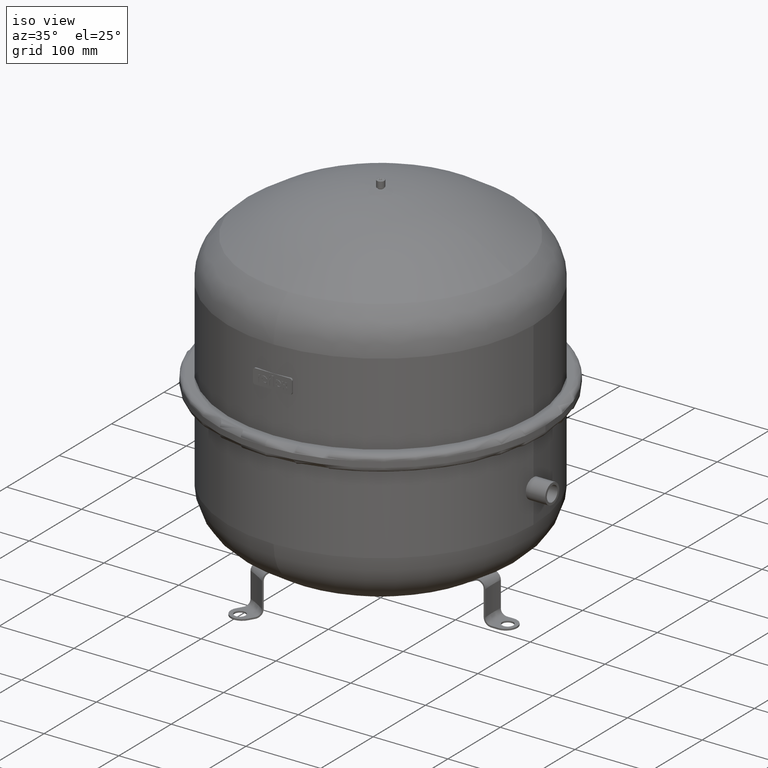
[diagram: clean part render]
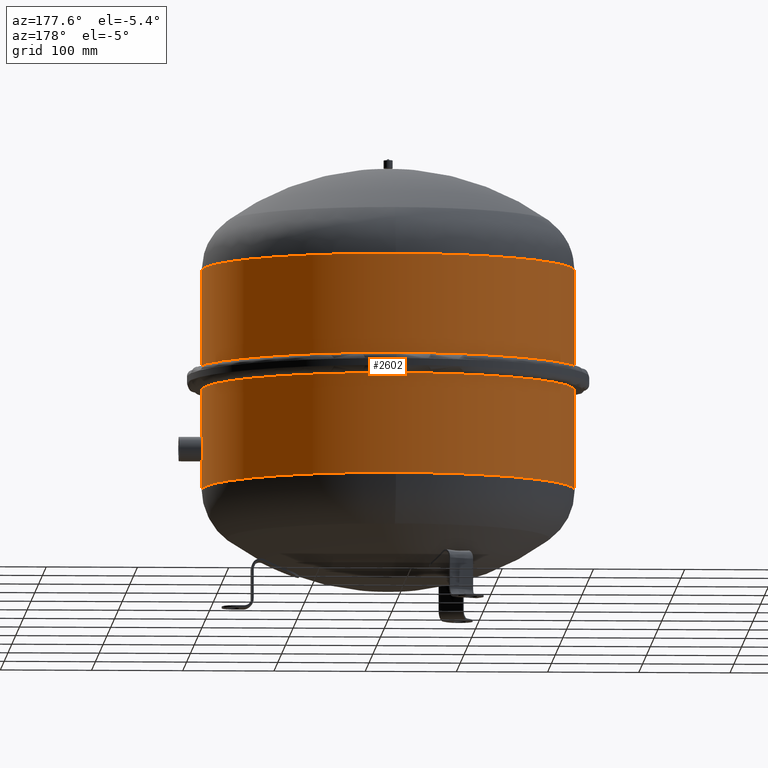
[diagram: tour spotlight — one face highlighted and labeled with its STEP entity id]
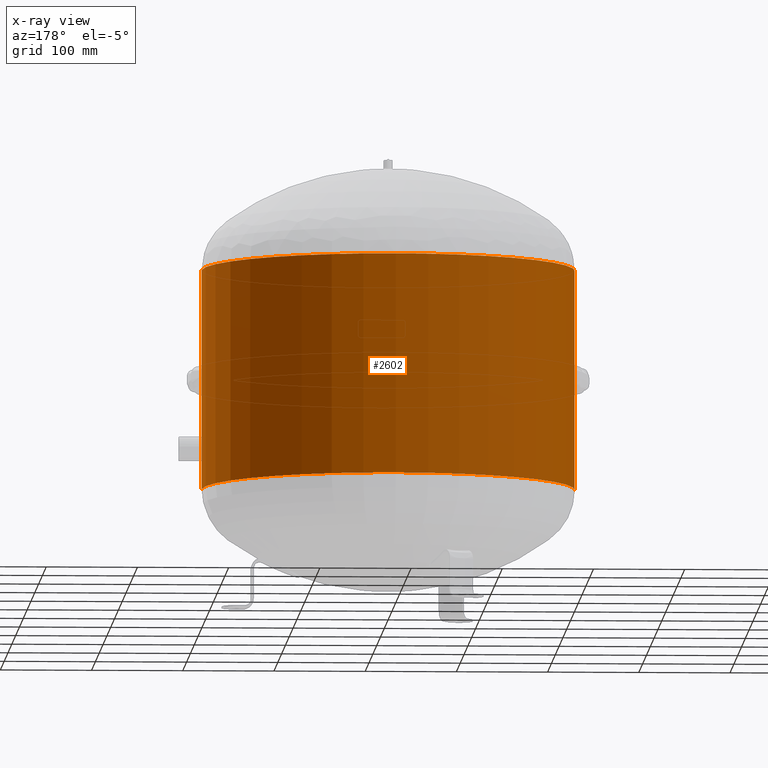
[diagram: x-ray of the same camera — body ghosted, this tour face saturated]
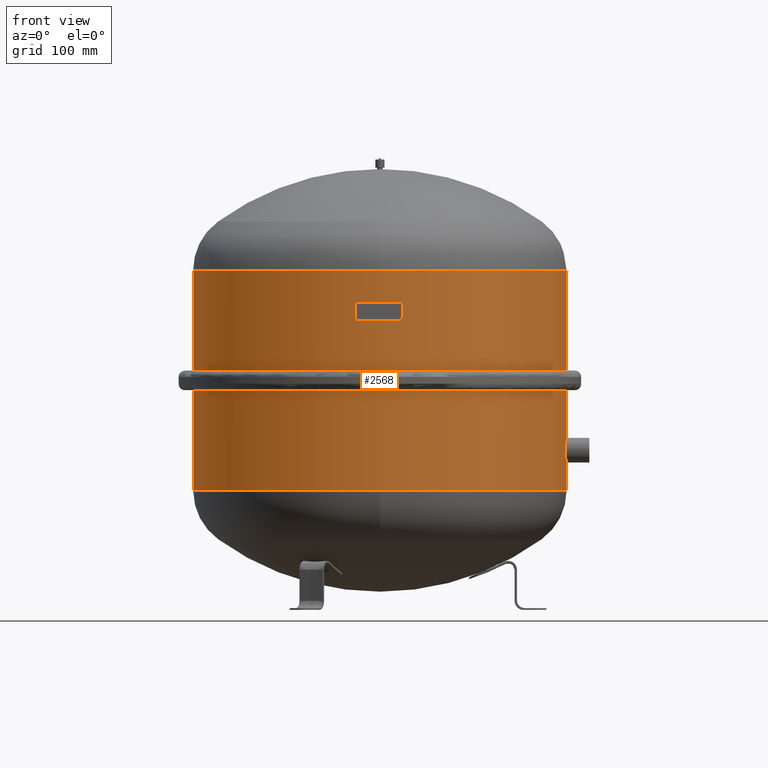
[diagram: tour spotlight — one face highlighted and labeled with its STEP entity id]
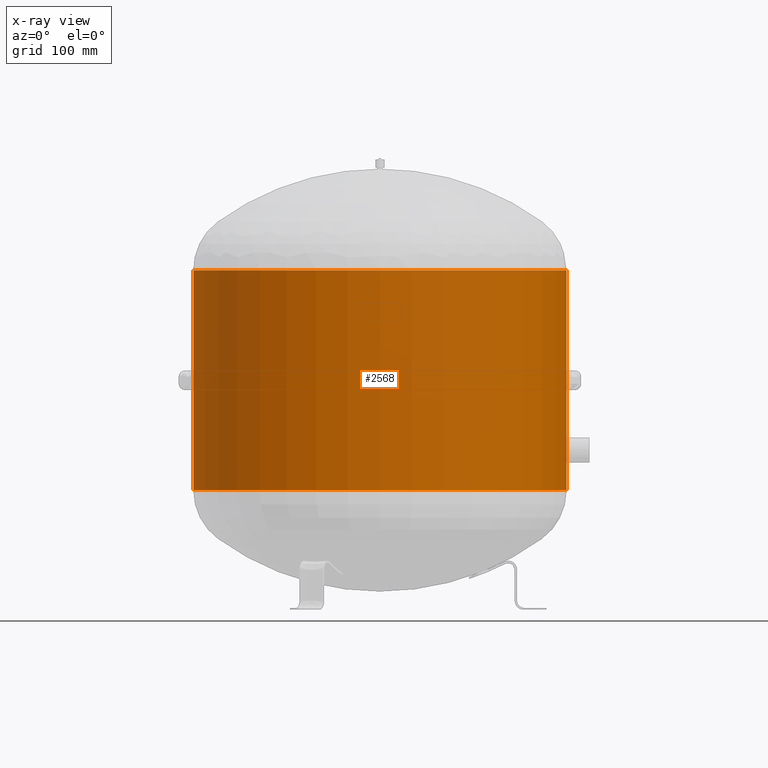
[diagram: x-ray of the same camera — body ghosted, this tour face saturated]
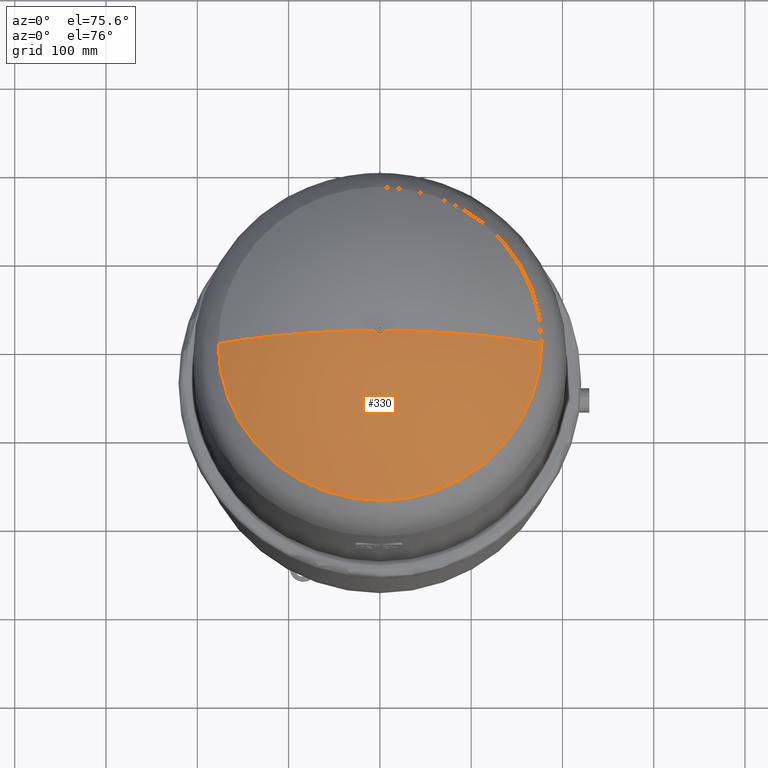
[diagram: tour spotlight — one face highlighted and labeled with its STEP entity id]
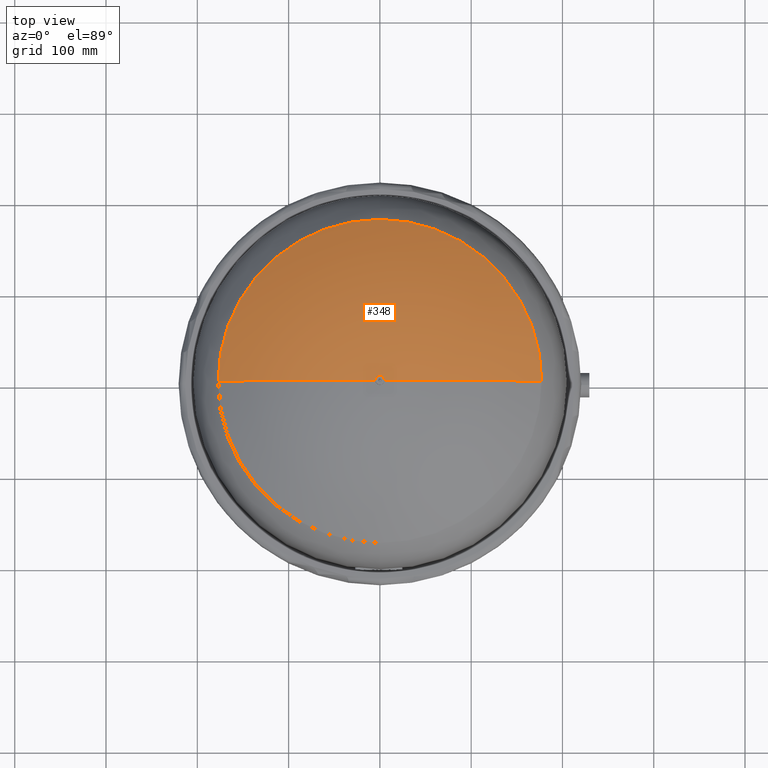
[diagram: tour spotlight — one face highlighted and labeled with its STEP entity id]
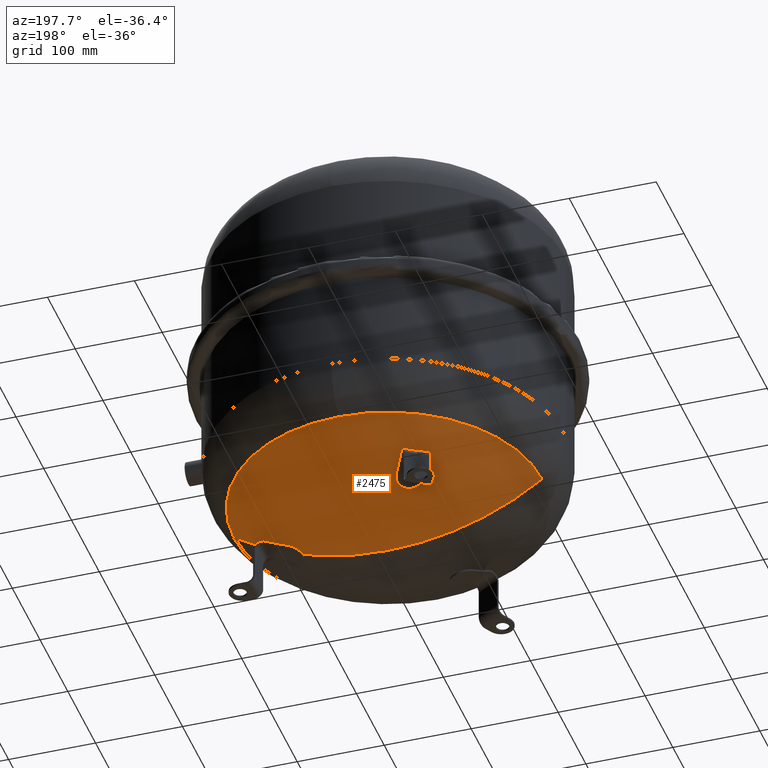
[diagram: tour spotlight — one face highlighted and labeled with its STEP entity id]
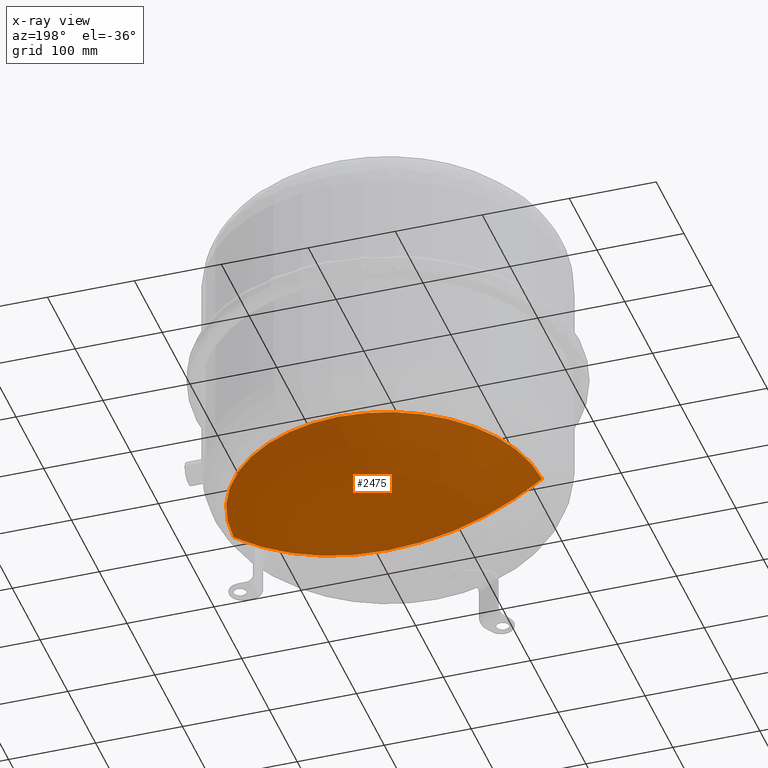
[diagram: x-ray of the same camera — body ghosted, this tour face saturated]
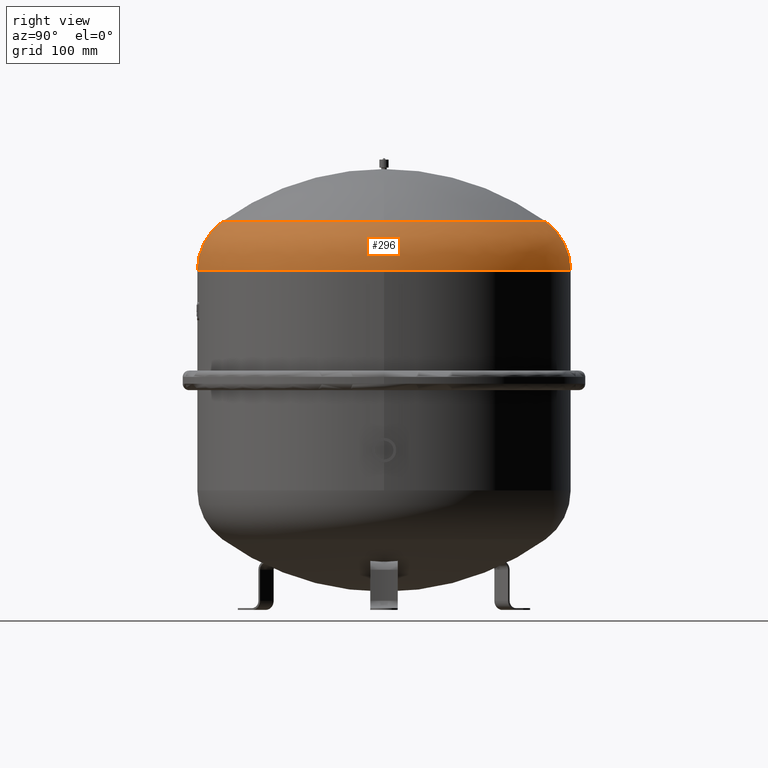
[diagram: tour spotlight — one face highlighted and labeled with its STEP entity id]
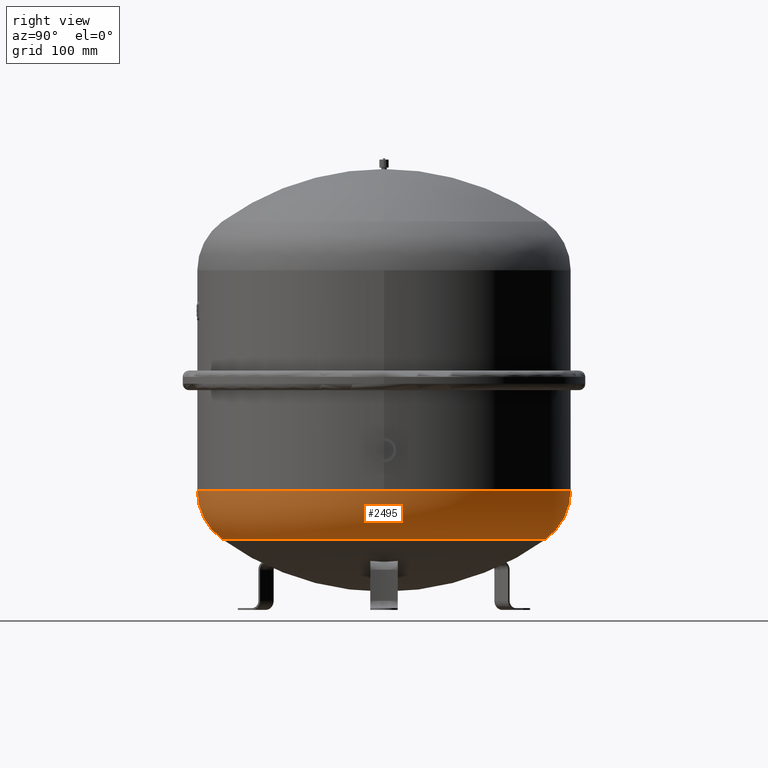
[diagram: tour spotlight — one face highlighted and labeled with its STEP entity id]
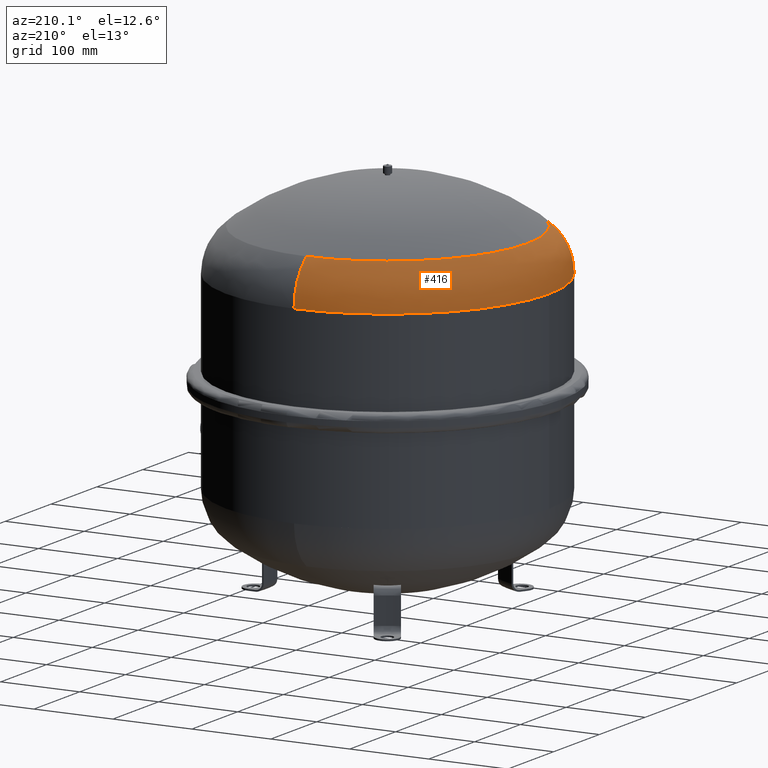
[diagram: tour spotlight — one face highlighted and labeled with its STEP entity id]
A machine part: a face-by-face anatomy tour. The part has 191 B-rep faces; the first image is the clean iso view, then the 8 largest visible faces are spotlighted one at a time (largest first), each with its STEP entity span.

Face 1 — auxiliary view, entity #2602. An x-ray twin of the same camera follows (body ghosted, this face saturated) — the face is partly hidden behind the body. In plain terms, the highlighted cylindrical surface (partial cylindrical patch) has radius 204.5 mm, axis along (0, 0, 1).
Definition (entity closure, byte-faithful):
#2532=CARTESIAN_POINT('',(204.5,0.0,372.0));
#2533=VERTEX_POINT('',#2532);
#2534=CARTESIAN_POINT('',(204.5,0.0,131.0));
#2535=VERTEX_POINT('',#2534);
#2536=CARTESIAN_POINT('',(204.5,0.0,372.0));
#2537=DIRECTION('',(0.0,0.0,-1.0));
#2538=VECTOR('',#2537,241.0);
#2539=LINE('',#2536,#2538);
#2540=EDGE_CURVE('',#2533,#2535,#2539,.T.);
#2542=CARTESIAN_POINT('',(-204.5,-2.504320E-014,372.0));
#2543=VERTEX_POINT('',#2542);
#2551=CARTESIAN_POINT('',(-204.5,2.504320E-014,131.0));
#2552=VERTEX_POINT('',#2551);
#2553=CARTESIAN_POINT('',(-204.5,-2.504320E-014,372.0));
#2554=DIRECTION('',(0.0,0.0,-1.0));
#2555=VECTOR('',#2554,241.0);
#2556=LINE('',#2553,#2555);
#2557=EDGE_CURVE('',#2543,#2552,#2556,.T.);
#2574=CARTESIAN_POINT('',(0.0,0.0,131.0));
#2575=DIRECTION('',(0.0,0.0,-1.0));
#2576=DIRECTION('',(1.0,0.0,0.0));
#2577=AXIS2_PLACEMENT_3D('',#2574,#2575,#2576);
#2578=CIRCLE('',#2577,204.5);
#2579=EDGE_CURVE('',#2552,#2535,#2578,.T.);
#2585=CARTESIAN_POINT('',(0.0,0.0,251.5));
#2586=DIRECTION('',(0.0,0.0,1.0));
#2587=DIRECTION('',(1.0,0.0,0.0));
#2588=AXIS2_PLACEMENT_3D('',#2585,#2586,#2587);
#2589=CYLINDRICAL_SURFACE('',#2588,204.5);
#2590=ORIENTED_EDGE('',*,*,#2540,.T.);
#2591=ORIENTED_EDGE('',*,*,#2579,.F.);
#2592=ORIENTED_EDGE('',*,*,#2557,.F.);
#2593=CARTESIAN_POINT('',(0.0,0.0,372.0));
#2594=DIRECTION('',(0.0,0.0,1.0));
#2595=DIRECTION('',(1.0,0.0,0.0));
#2596=AXIS2_PLACEMENT_3D('',#2593,#2594,#2595);
#2597=CIRCLE('',#2596,204.5);
#2598=EDGE_CURVE('',#2533,#2543,#2597,.T.);
#2599=ORIENTED_EDGE('',*,*,#2598,.F.);
#2600=EDGE_LOOP('',(#2590,#2591,#2592,#2599));
#2601=FACE_OUTER_BOUND('',#2600,.T.);
#2602=ADVANCED_FACE('',(#2601),#2589,.T.);

Face 2 — front view, entity #2568. An x-ray twin of the same camera follows (body ghosted, this face saturated) — the face is partly hidden behind the body. In plain terms, the highlighted cylindrical surface (partial cylindrical patch) has radius 204.5 mm, axis along (0, 0, 1).
Definition (entity closure, byte-faithful):
#2527=CARTESIAN_POINT('',(0.0,0.0,251.5));
#2528=DIRECTION('',(0.0,0.0,1.0));
#2529=DIRECTION('',(1.0,0.0,0.0));
#2530=AXIS2_PLACEMENT_3D('',#2527,#2528,#2529);
#2531=CYLINDRICAL_SURFACE('',#2530,204.5);
#2532=CARTESIAN_POINT('',(204.5,0.0,372.0));
#2533=VERTEX_POINT('',#2532);
#2534=CARTESIAN_POINT('',(204.5,0.0,131.0));
#2535=VERTEX_POINT('',#2534);
#2536=CARTESIAN_POINT('',(204.5,0.0,372.0));
#2537=DIRECTION('',(0.0,0.0,-1.0));
#2538=VECTOR('',#2537,241.0);
#2539=LINE('',#2536,#2538);
#2540=EDGE_CURVE('',#2533,#2535,#2539,.T.);
#2541=ORIENTED_EDGE('',*,*,#2540,.F.);
#2542=CARTESIAN_POINT('',(-204.5,-2.504320E-014,372.0));
#2543=VERTEX_POINT('',#2542);
#2544=CARTESIAN_POINT('',(0.0,0.0,372.0));
#2545=DIRECTION('',(0.0,0.0,1.0));
#2546=DIRECTION('',(1.0,0.0,0.0));
#2547=AXIS2_PLACEMENT_3D('',#2544,#2545,#2546);
#2548=CIRCLE('',#2547,204.5);
#2549=EDGE_CURVE('',#2543,#2533,#2548,.T.);
#2550=ORIENTED_EDGE('',*,*,#2549,.F.);
#2551=CARTESIAN_POINT('',(-204.5,2.504320E-014,131.0));
#2552=VERTEX_POINT('',#2551);
#2553=CARTESIAN_POINT('',(-204.5,-2.504320E-014,372.0));
#2554=DIRECTION('',(0.0,0.0,-1.0));
#2555=VECTOR('',#2554,241.0);
#2556=LINE('',#2553,#2555);
#2557=EDGE_CURVE('',#2543,#2552,#2556,.T.);
#2558=ORIENTED_EDGE('',*,*,#2557,.T.);
#2559=CARTESIAN_POINT('',(0.0,0.0,131.0));
#2560=DIRECTION('',(0.0,0.0,-1.0));
#2561=DIRECTION('',(1.0,0.0,0.0));
#2562=AXIS2_PLACEMENT_3D('',#2559,#2560,#2561);
#2563=CIRCLE('',#2562,204.5);
#2564=EDGE_CURVE('',#2535,#2552,#2563,.T.);
#2565=ORIENTED_EDGE('',*,*,#2564,.F.);
#2566=EDGE_LOOP('',(#2541,#2550,#2558,#2565));
#2567=FACE_OUTER_BOUND('',#2566,.T.);
#2568=ADVANCED_FACE('',(#2567),#2531,.T.);

Face 3 — auxiliary view, entity #330. In plain terms, the highlighted spherical surface has radius 302 mm.
Definition (entity closure, byte-faithful):
#250=CARTESIAN_POINT('',(0.0,-177.23305084745763,425.52493878396643));
#251=VERTEX_POINT('',#250);
#278=CARTESIAN_POINT('',(177.23305084745763,-5.547650E-014,425.52493878396638));
#279=VERTEX_POINT('',#278);
#287=CARTESIAN_POINT('',(0.0,-1.055800E-014,425.52493878396638));
#288=DIRECTION('',(0.0,0.0,1.0));
#289=DIRECTION('',(-1.0,0.0,0.0));
#290=AXIS2_PLACEMENT_3D('',#287,#288,#289);
#291=CIRCLE('',#290,177.23305084745763);
#292=EDGE_CURVE('',#251,#279,#291,.T.);
#297=CARTESIAN_POINT('',(0.0,-5.547650E-014,181.0));
#298=DIRECTION('',(0.0,0.0,1.0));
#299=DIRECTION('',(1.0,0.0,0.0));
#300=AXIS2_PLACEMENT_3D('',#297,#298,#299);
#301=SPHERICAL_SURFACE('',#300,302.00000000000006);
#302=CARTESIAN_POINT('',(-1.849156E-014,-5.547650E-014,483.00000000000006));
#303=VERTEX_POINT('',#302);
#304=CARTESIAN_POINT('',(0.0,-5.547650E-014,181.0));
#305=DIRECTION('',(0.0,1.0,0.0));
#306=DIRECTION('',(1.0,0.0,0.0));
#307=AXIS2_PLACEMENT_3D('',#304,#305,#306);
#308=CIRCLE('',#307,302.00000000000006);
#309=EDGE_CURVE('',#303,#279,#308,.T.);
#310=ORIENTED_EDGE('',*,*,#309,.F.);
#311=CARTESIAN_POINT('',(-177.23305084745763,-1.055800E-014,425.52493878396638));
#312=VERTEX_POINT('',#311);
#313=CARTESIAN_POINT('',(0.0,-5.547650E-014,181.0));
#314=DIRECTION('',(0.0,-1.0,0.0));
#315=DIRECTION('',(-1.0,0.0,0.0));
#316=AXIS2_PLACEMENT_3D('',#313,#314,#315);
#317=CIRCLE('',#316,302.00000000000006);
#318=EDGE_CURVE('',#303,#312,#317,.T.);
#319=ORIENTED_EDGE('',*,*,#318,.T.);
#320=CARTESIAN_POINT('',(0.0,-1.055800E-014,425.52493878396638));
#321=DIRECTION('',(0.0,0.0,1.0));
#322=DIRECTION('',(-1.0,0.0,0.0));
#323=AXIS2_PLACEMENT_3D('',#320,#321,#322);
#324=CIRCLE('',#323,177.23305084745763);
#325=EDGE_CURVE('',#312,#251,#324,.T.);
#326=ORIENTED_EDGE('',*,*,#325,.T.);
#327=ORIENTED_EDGE('',*,*,#292,.T.);
#328=EDGE_LOOP('',(#310,#319,#326,#327));
#329=FACE_OUTER_BOUND('',#328,.T.);
#330=ADVANCED_FACE('',(#329),#301,.T.);

Face 4 — top view, entity #348. In plain terms, the highlighted spherical surface has radius 302 mm.
Definition (entity closure, byte-faithful):
#269=CARTESIAN_POINT('',(-2.170407E-014,177.23305084745763,425.52493878396632));
#270=VERTEX_POINT('',#269);
#278=CARTESIAN_POINT('',(177.23305084745763,-5.547650E-014,425.52493878396638));
#279=VERTEX_POINT('',#278);
#280=CARTESIAN_POINT('',(0.0,-1.055800E-014,425.52493878396638));
#281=DIRECTION('',(0.0,0.0,1.0));
#282=DIRECTION('',(-1.0,0.0,0.0));
#283=AXIS2_PLACEMENT_3D('',#280,#281,#282);
#284=CIRCLE('',#283,177.23305084745763);
#285=EDGE_CURVE('',#279,#270,#284,.T.);
#302=CARTESIAN_POINT('',(-1.849156E-014,-5.547650E-014,483.00000000000006));
#303=VERTEX_POINT('',#302);
#304=CARTESIAN_POINT('',(0.0,-5.547650E-014,181.0));
#305=DIRECTION('',(0.0,1.0,0.0));
#306=DIRECTION('',(1.0,0.0,0.0));
#307=AXIS2_PLACEMENT_3D('',#304,#305,#306);
#308=CIRCLE('',#307,302.00000000000006);
#309=EDGE_CURVE('',#303,#279,#308,.T.);
#311=CARTESIAN_POINT('',(-177.23305084745763,-1.055800E-014,425.52493878396638));
#312=VERTEX_POINT('',#311);
#313=CARTESIAN_POINT('',(0.0,-5.547650E-014,181.0));
#314=DIRECTION('',(0.0,-1.0,0.0));
#315=DIRECTION('',(-1.0,0.0,0.0));
#316=AXIS2_PLACEMENT_3D('',#313,#314,#315);
#317=CIRCLE('',#316,302.00000000000006);
#318=EDGE_CURVE('',#303,#312,#317,.T.);
#331=CARTESIAN_POINT('',(0.0,-5.547650E-014,181.0));
#332=DIRECTION('',(0.0,0.0,1.0));
#333=DIRECTION('',(1.0,0.0,0.0));
#334=AXIS2_PLACEMENT_3D('',#331,#332,#333);
#335=SPHERICAL_SURFACE('',#334,302.00000000000006);
#336=ORIENTED_EDGE('',*,*,#309,.T.);
#337=ORIENTED_EDGE('',*,*,#285,.T.);
#338=CARTESIAN_POINT('',(0.0,-1.055800E-014,425.52493878396638));
#339=DIRECTION('',(0.0,0.0,1.0));
#340=DIRECTION('',(-1.0,0.0,0.0));
#341=AXIS2_PLACEMENT_3D('',#338,#339,#340);
#342=CIRCLE('',#341,177.23305084745763);
#343=EDGE_CURVE('',#270,#312,#342,.T.);
#344=ORIENTED_EDGE('',*,*,#343,.T.);
#345=ORIENTED_EDGE('',*,*,#318,.F.);
#346=EDGE_LOOP('',(#336,#337,#344,#345));
#347=FACE_OUTER_BOUND('',#346,.T.);
#348=ADVANCED_FACE('',(#347),#335,.T.);

Face 5 — auxiliary view, entity #2475. An x-ray twin of the same camera follows (body ghosted, this face saturated) — the face is partly hidden behind the body. In plain terms, the highlighted spherical surface has radius 302 mm.
Definition (entity closure, byte-faithful):
#2396=CARTESIAN_POINT('',(-2.170407E-014,177.23305084745763,77.475061216033623));
#2397=VERTEX_POINT('',#2396);
#2405=CARTESIAN_POINT('',(-177.23305084745763,-1.055800E-014,77.475061216033595));
#2406=VERTEX_POINT('',#2405);
#2407=CARTESIAN_POINT('',(0.0,-1.055800E-014,77.475061216033595));
#2408=DIRECTION('',(0.0,0.0,1.0));
#2409=DIRECTION('',(-1.0,0.0,0.0));
#2410=AXIS2_PLACEMENT_3D('',#2407,#2408,#2409);
#2411=CIRCLE('',#2410,177.23305084745763);
#2412=EDGE_CURVE('',#2397,#2406,#2411,.T.);
#2429=CARTESIAN_POINT('',(177.23305084745763,-5.547650E-014,77.475061216033609));
#2430=VERTEX_POINT('',#2429);
#2431=CARTESIAN_POINT('',(-1.849156E-014,-5.547650E-014,19.999999999999943));
#2432=VERTEX_POINT('',#2431);
#2433=CARTESIAN_POINT('',(0.0,-5.547650E-014,322.0));
#2434=DIRECTION('',(0.0,1.0,0.0));
#2435=DIRECTION('',(1.0,0.0,0.0));
#2436=AXIS2_PLACEMENT_3D('',#2433,#2434,#2435);
#2437=CIRCLE('',#2436,302.00000000000006);
#2438=EDGE_CURVE('',#2430,#2432,#2437,.T.);
#2448=CARTESIAN_POINT('',(0.0,-5.547650E-014,322.0));
#2449=DIRECTION('',(0.0,-1.0,0.0));
#2450=DIRECTION('',(-1.0,0.0,0.0));
#2451=AXIS2_PLACEMENT_3D('',#2448,#2449,#2450);
#2452=CIRCLE('',#2451,302.00000000000006);
#2453=EDGE_CURVE('',#2406,#2432,#2452,.T.);
#2458=CARTESIAN_POINT('',(0.0,-5.547650E-014,322.0));
#2459=DIRECTION('',(0.0,0.0,1.0));
#2460=DIRECTION('',(1.0,0.0,0.0));
#2461=AXIS2_PLACEMENT_3D('',#2458,#2459,#2460);
#2462=SPHERICAL_SURFACE('',#2461,302.00000000000006);
#2463=ORIENTED_EDGE('',*,*,#2438,.T.);
#2464=ORIENTED_EDGE('',*,*,#2453,.F.);
#2465=ORIENTED_EDGE('',*,*,#2412,.F.);
#2466=CARTESIAN_POINT('',(0.0,-1.055800E-014,77.475061216033595));
#2467=DIRECTION('',(0.0,0.0,1.0));
#2468=DIRECTION('',(-1.0,0.0,0.0));
#2469=AXIS2_PLACEMENT_3D('',#2466,#2467,#2468);
#2470=CIRCLE('',#2469,177.23305084745763);
#2471=EDGE_CURVE('',#2430,#2397,#2470,.T.);
#2472=ORIENTED_EDGE('',*,*,#2471,.F.);
#2473=EDGE_LOOP('',(#2463,#2464,#2465,#2472));
#2474=FACE_OUTER_BOUND('',#2473,.T.);
#2475=ADVANCED_FACE('',(#2474),#2462,.T.);

Face 6 — right view, entity #296. In plain terms, the highlighted face is a freeform B-spline surface patch.
Definition (entity closure, byte-faithful):
#170=CARTESIAN_POINT('',(204.50000000000003,4.668576E-015,372.08571375170879));
#171=VERTEX_POINT('',#170);
#178=CARTESIAN_POINT('',(0.0,-204.50000000000006,372.08571375170885));
#179=VERTEX_POINT('',#178);
#180=CARTESIAN_POINT('',(0.0,-2.037462E-014,372.08571375170879));
#181=DIRECTION('',(0.0,0.0,1.0));
#182=DIRECTION('',(-1.0,0.0,0.0));
#183=AXIS2_PLACEMENT_3D('',#180,#181,#182);
#184=CIRCLE('',#183,204.50000000000003);
#185=EDGE_CURVE('',#179,#171,#184,.T.);
#197=CARTESIAN_POINT('',(-8.878396E-015,72.499999999999972,372.08571375170868));
#198=CARTESIAN_POINT('',(-8.878396E-015,72.499999999999886,438.08571375170874));
#199=CARTESIAN_POINT('',(-1.696080E-014,138.49999999999997,438.08571375170874));
#200=CARTESIAN_POINT('',(-2.504320E-014,204.50000000000006,438.08571375170874));
#201=CARTESIAN_POINT('',(-2.504320E-014,204.49999999999997,372.08571375170862));
#202=CARTESIAN_POINT('',(-72.499999999999986,72.499999999999943,372.08571375170874));
#203=CARTESIAN_POINT('',(-72.499999999999901,72.499999999999872,438.08571375170874));
#204=CARTESIAN_POINT('',(-138.49999999999997,138.49999999999991,438.08571375170874));
#205=CARTESIAN_POINT('',(-204.50000000000003,204.49999999999997,438.08571375170874));
#206=CARTESIAN_POINT('',(-204.5,204.49999999999986,372.08571375170862));
#207=CARTESIAN_POINT('',(-72.499999999999986,-2.925302E-014,372.08571375170868));
#208=CARTESIAN_POINT('',(-72.499999999999901,-1.712902E-014,438.08571375170874));
#209=CARTESIAN_POINT('',(-138.49999999999997,-2.521142E-014,438.08571375170879));
#210=CARTESIAN_POINT('',(-204.50000000000006,-3.329382E-014,438.08571375170879));
#211=CARTESIAN_POINT('',(-204.5,-4.541782E-014,372.08571375170868));
#212=CARTESIAN_POINT('',(-72.499999999999957,-72.5,372.08571375170874));
#213=CARTESIAN_POINT('',(-72.499999999999872,-72.499999999999901,438.08571375170874));
#214=CARTESIAN_POINT('',(-138.49999999999991,-138.49999999999997,438.08571375170885));
#215=CARTESIAN_POINT('',(-204.49999999999997,-204.50000000000003,438.08571375170885));
#216=CARTESIAN_POINT('',(-204.49999999999991,-204.5,372.08571375170874));
#217=CARTESIAN_POINT('',(8.878396E-015,-72.5,372.08571375170868));
#218=CARTESIAN_POINT('',(8.878396E-015,-72.499999999999915,438.08571375170874));
#219=CARTESIAN_POINT('',(1.696080E-014,-138.49999999999997,438.08571375170885));
#220=CARTESIAN_POINT('',(2.504320E-014,-204.50000000000006,438.08571375170879));
#221=CARTESIAN_POINT('',(2.504320E-014,-204.50000000000003,372.08571375170874));
#222=CARTESIAN_POINT('',(72.499999999999986,-72.499999999999986,372.08571375170874));
#223=CARTESIAN_POINT('',(72.499999999999901,-72.499999999999886,438.08571375170874));
#224=CARTESIAN_POINT('',(138.49999999999997,-138.49999999999994,438.08571375170885));
#225=CARTESIAN_POINT('',(204.50000000000003,-204.49999999999997,438.08571375170885));
#226=CARTESIAN_POINT('',(204.5,-204.49999999999994,372.08571375170874));
#227=CARTESIAN_POINT('',(72.499999999999986,-1.149623E-014,372.08571375170868));
#228=CARTESIAN_POINT('',(72.499999999999901,6.277755E-016,438.08571375170874));
#229=CARTESIAN_POINT('',(138.49999999999997,8.710177E-015,438.08571375170879));
#230=CARTESIAN_POINT('',(204.50000000000006,1.679258E-014,438.08571375170879));
#231=CARTESIAN_POINT('',(204.5,4.668576E-015,372.08571375170868));
#232=CARTESIAN_POINT('',(72.499999999999957,72.499999999999957,372.08571375170874));
#233=CARTESIAN_POINT('',(72.499999999999872,72.499999999999886,438.08571375170874));
#234=CARTESIAN_POINT('',(138.49999999999991,138.49999999999994,438.08571375170874));
#235=CARTESIAN_POINT('',(204.49999999999997,204.50000000000003,438.08571375170874));
#236=CARTESIAN_POINT('',(204.49999999999991,204.49999999999994,372.08571375170862));
#237=CARTESIAN_POINT('',(-8.878396E-015,72.499999999999972,372.08571375170868));
#238=CARTESIAN_POINT('',(-8.878396E-015,72.499999999999886,438.08571375170874));
#239=CARTESIAN_POINT('',(-1.696080E-014,138.49999999999997,438.08571375170874));
#240=CARTESIAN_POINT('',(-2.504320E-014,204.50000000000006,438.08571375170874));
#241=CARTESIAN_POINT('',(-2.504320E-014,204.49999999999997,372.08571375170862));
#249=(BOUNDED_SURFACE()B_SPLINE_SURFACE(2,2,((#197,#202,#207,#212,#217,#222,#227,#232,#237),(#198,#203,#208,#213,#218,#223,#228,#233,#238),(#199,#204,#209,#214,#219,#224,#229,#234,#239),(#200,#205,#210,#215,#220,#225,#230,#235,#240),(#201,#206,#211,#216,#221,#226,#231,#236,#241)),.UNSPECIFIED.,.F.,.T.,.U.)B_SPLINE_SURFACE_WITH_KNOTS((3,2,3),(3,2,2,2,3),(-3.141592653589794,-1.570796326794897,1.430446E-015),(0.0,1.570796326794897,3.141592653589793,4.71238898038469,6.283185307179586),.UNSPECIFIED.)GEOMETRIC_REPRESENTATION_ITEM()RATIONAL_B_SPLINE_SURFACE(((1.0,0.707106781186548,1.0,0.707106781186548,1.0,0.707106781186548,1.0,0.707106781186548,1.0),(0.707106781186547,0.5,0.707106781186547,0.5,0.707106781186547,0.5,0.707106781186547,0.5,0.707106781186547),(1.0,0.707106781186548,1.0,0.707106781186548,1.0,0.707106781186548,1.0,0.707106781186548,1.0),(0.707106781186548,0.5,0.707106781186548,0.5,0.707106781186548,0.5,0.707106781186548,0.5,0.707106781186548),(1.0,0.707106781186548,1.0,0.707106781186548,1.0,0.707106781186548,1.0,0.707106781186548,1.0)))REPRESENTATION_ITEM('')SURFACE());
#250=CARTESIAN_POINT('',(0.0,-177.23305084745763,425.52493878396643));
#251=VERTEX_POINT('',#250);
#252=CARTESIAN_POINT('',(0.0,-138.50000000000003,372.08571375170885));
#253=DIRECTION('',(-1.0,0.0,0.0));
#254=DIRECTION('',(0.0,-1.0,0.0));
#255=AXIS2_PLACEMENT_3D('',#252,#253,#254);
#256=CIRCLE('',#255,66.0);
#257=EDGE_CURVE('',#179,#251,#256,.T.);
#258=ORIENTED_EDGE('',*,*,#257,.F.);
#259=ORIENTED_EDGE('',*,*,#185,.T.);
#260=CARTESIAN_POINT('',(-2.504320E-014,204.5,372.08571375170874));
#261=VERTEX_POINT('',#260);
#262=CARTESIAN_POINT('',(0.0,-2.037462E-014,372.08571375170879));
#263=DIRECTION('',(0.0,0.0,1.0));
#264=DIRECTION('',(-1.0,0.0,0.0));
#265=AXIS2_PLACEMENT_3D('',#262,#263,#264);
#266=CIRCLE('',#265,204.50000000000003);
#267=EDGE_CURVE('',#171,#261,#266,.T.);
#268=ORIENTED_EDGE('',*,*,#267,.T.);
#269=CARTESIAN_POINT('',(-2.170407E-014,177.23305084745763,425.52493878396632));
#270=VERTEX_POINT('',#269);
#271=CARTESIAN_POINT('',(-1.696080E-014,138.49999999999997,372.08571375170874));
#272=DIRECTION('',(1.0,0.0,0.0));
#273=DIRECTION('',(0.0,1.0,0.0));
#274=AXIS2_PLACEMENT_3D('',#271,#272,#273);
#275=CIRCLE('',#274,66.0);
#276=EDGE_CURVE('',#261,#270,#275,.T.);
#277=ORIENTED_EDGE('',*,*,#276,.T.);
#278=CARTESIAN_POINT('',(177.23305084745763,-5.547650E-014,425.52493878396638));
#279=VERTEX_POINT('',#278);
#280=CARTESIAN_POINT('',(0.0,-1.055800E-014,425.52493878396638));
#281=DIRECTION('',(0.0,0.0,1.0));
#282=DIRECTION('',(-1.0,0.0,0.0));
#283=AXIS2_PLACEMENT_3D('',#280,#281,#282);
#284=CIRCLE('',#283,177.23305084745763);
#285=EDGE_CURVE('',#279,#270,#284,.T.);
#286=ORIENTED_EDGE('',*,*,#285,.F.);
#287=CARTESIAN_POINT('',(0.0,-1.055800E-014,425.52493878396638));
#288=DIRECTION('',(0.0,0.0,1.0));
#289=DIRECTION('',(-1.0,0.0,0.0));
#290=AXIS2_PLACEMENT_3D('',#287,#288,#289);
#291=CIRCLE('',#290,177.23305084745763);
#292=EDGE_CURVE('',#251,#279,#291,.T.);
#293=ORIENTED_EDGE('',*,*,#292,.F.);
#294=EDGE_LOOP('',(#258,#259,#268,#277,#286,#293));
#295=FACE_OUTER_BOUND('',#294,.T.);
#296=ADVANCED_FACE('',(#295),#249,.T.);

Face 7 — right view, entity #2495. In plain terms, the highlighted toroidal blend (fillet) surface has major radius 138.5 mm and minor (blend) radius 66 mm.
Definition (entity closure, byte-faithful):
#2345=CARTESIAN_POINT('',(204.50000000000003,4.668576E-015,130.91428624829121));
#2346=VERTEX_POINT('',#2345);
#2353=CARTESIAN_POINT('',(-2.504320E-014,204.5,130.91428624829123));
#2354=VERTEX_POINT('',#2353);
#2355=CARTESIAN_POINT('',(0.0,-2.037462E-014,130.91428624829121));
#2356=DIRECTION('',(0.0,0.0,1.0));
#2357=DIRECTION('',(-1.0,0.0,0.0));
#2358=AXIS2_PLACEMENT_3D('',#2355,#2356,#2357);
#2359=CIRCLE('',#2358,204.50000000000003);
#2360=EDGE_CURVE('',#2346,#2354,#2359,.T.);
#2377=CARTESIAN_POINT('',(0.0,-204.50000000000006,130.91428624829118));
#2378=VERTEX_POINT('',#2377);
#2379=CARTESIAN_POINT('',(0.0,-177.23305084745763,77.475061216033566));
#2380=VERTEX_POINT('',#2379);
#2381=CARTESIAN_POINT('',(0.0,-138.50000000000003,130.91428624829118));
#2382=DIRECTION('',(1.0,0.0,0.0));
#2383=DIRECTION('',(0.0,-1.0,0.0));
#2384=AXIS2_PLACEMENT_3D('',#2381,#2382,#2383);
#2385=CIRCLE('',#2384,66.0);
#2386=EDGE_CURVE('',#2378,#2380,#2385,.T.);
#2396=CARTESIAN_POINT('',(-2.170407E-014,177.23305084745763,77.475061216033623));
#2397=VERTEX_POINT('',#2396);
#2398=CARTESIAN_POINT('',(-1.696080E-014,138.49999999999997,130.91428624829123));
#2399=DIRECTION('',(-1.0,0.0,0.0));
#2400=DIRECTION('',(0.0,1.0,0.0));
#2401=AXIS2_PLACEMENT_3D('',#2398,#2399,#2400);
#2402=CIRCLE('',#2401,66.0);
#2403=EDGE_CURVE('',#2354,#2397,#2402,.T.);
#2429=CARTESIAN_POINT('',(177.23305084745763,-5.547650E-014,77.475061216033609));
#2430=VERTEX_POINT('',#2429);
#2440=CARTESIAN_POINT('',(0.0,-1.055800E-014,77.475061216033595));
#2441=DIRECTION('',(0.0,0.0,1.0));
#2442=DIRECTION('',(-1.0,0.0,0.0));
#2443=AXIS2_PLACEMENT_3D('',#2440,#2441,#2442);
#2444=CIRCLE('',#2443,177.23305084745763);
#2445=EDGE_CURVE('',#2380,#2430,#2444,.T.);
#2466=CARTESIAN_POINT('',(0.0,-1.055800E-014,77.475061216033595));
#2467=DIRECTION('',(0.0,0.0,1.0));
#2468=DIRECTION('',(-1.0,0.0,0.0));
#2469=AXIS2_PLACEMENT_3D('',#2466,#2467,#2468);
#2470=CIRCLE('',#2469,177.23305084745763);
#2471=EDGE_CURVE('',#2430,#2397,#2470,.T.);
#2476=CARTESIAN_POINT('',(0.0,-2.037462E-014,130.91428624829121));
#2477=DIRECTION('',(0.0,-1.836970E-016,1.0));
#2478=DIRECTION('',(0.0,-1.0,0.0));
#2479=AXIS2_PLACEMENT_3D('',#2476,#2477,#2478);
#2480=TOROIDAL_SURFACE('',#2479,138.5,66.0);
#2481=ORIENTED_EDGE('',*,*,#2386,.T.);
#2482=ORIENTED_EDGE('',*,*,#2445,.T.);
#2483=ORIENTED_EDGE('',*,*,#2471,.T.);
#2484=ORIENTED_EDGE('',*,*,#2403,.F.);
#2485=ORIENTED_EDGE('',*,*,#2360,.F.);
#2486=CARTESIAN_POINT('',(0.0,-2.037462E-014,130.91428624829121));
#2487=DIRECTION('',(0.0,0.0,1.0));
#2488=DIRECTION('',(-1.0,0.0,0.0));
#2489=AXIS2_PLACEMENT_3D('',#2486,#2487,#2488);
#2490=CIRCLE('',#2489,204.50000000000003);
#2491=EDGE_CURVE('',#2378,#2346,#2490,.T.);
#2492=ORIENTED_EDGE('',*,*,#2491,.F.);
#2493=EDGE_LOOP('',(#2481,#2482,#2483,#2484,#2485,#2492));
#2494=FACE_OUTER_BOUND('',#2493,.T.);
#2495=ADVANCED_FACE('',(#2494),#2480,.T.);

Face 8 — auxiliary view, entity #416. In plain terms, the highlighted face is a freeform B-spline surface patch.
Definition (entity closure, byte-faithful):
#153=CARTESIAN_POINT('',(-204.50000000000003,-2.037462E-014,372.08571375170879));
#154=VERTEX_POINT('',#153);
#178=CARTESIAN_POINT('',(0.0,-204.50000000000006,372.08571375170885));
#179=VERTEX_POINT('',#178);
#187=CARTESIAN_POINT('',(0.0,-2.037462E-014,372.08571375170879));
#188=DIRECTION('',(0.0,0.0,1.0));
#189=DIRECTION('',(-1.0,0.0,0.0));
#190=AXIS2_PLACEMENT_3D('',#187,#188,#189);
#191=CIRCLE('',#190,204.50000000000003);
#192=EDGE_CURVE('',#154,#179,#191,.T.);
#250=CARTESIAN_POINT('',(0.0,-177.23305084745763,425.52493878396643));
#251=VERTEX_POINT('',#250);
#252=CARTESIAN_POINT('',(0.0,-138.50000000000003,372.08571375170885));
#253=DIRECTION('',(-1.0,0.0,0.0));
#254=DIRECTION('',(0.0,-1.0,0.0));
#255=AXIS2_PLACEMENT_3D('',#252,#253,#254);
#256=CIRCLE('',#255,66.0);
#257=EDGE_CURVE('',#179,#251,#256,.T.);
#260=CARTESIAN_POINT('',(-2.504320E-014,204.5,372.08571375170874));
#261=VERTEX_POINT('',#260);
#269=CARTESIAN_POINT('',(-2.170407E-014,177.23305084745763,425.52493878396632));
#270=VERTEX_POINT('',#269);
#271=CARTESIAN_POINT('',(-1.696080E-014,138.49999999999997,372.08571375170874));
#272=DIRECTION('',(1.0,0.0,0.0));
#273=DIRECTION('',(0.0,1.0,0.0));
#274=AXIS2_PLACEMENT_3D('',#271,#272,#273);
#275=CIRCLE('',#274,66.0);
#276=EDGE_CURVE('',#261,#270,#275,.T.);
#311=CARTESIAN_POINT('',(-177.23305084745763,-1.055800E-014,425.52493878396638));
#312=VERTEX_POINT('',#311);
#320=CARTESIAN_POINT('',(0.0,-1.055800E-014,425.52493878396638));
#321=DIRECTION('',(0.0,0.0,1.0));
#322=DIRECTION('',(-1.0,0.0,0.0));
#323=AXIS2_PLACEMENT_3D('',#320,#321,#322);
#324=CIRCLE('',#323,177.23305084745763);
#325=EDGE_CURVE('',#312,#251,#324,.T.);
#338=CARTESIAN_POINT('',(0.0,-1.055800E-014,425.52493878396638));
#339=DIRECTION('',(0.0,0.0,1.0));
#340=DIRECTION('',(-1.0,0.0,0.0));
#341=AXIS2_PLACEMENT_3D('',#338,#339,#340);
#342=CIRCLE('',#341,177.23305084745763);
#343=EDGE_CURVE('',#270,#312,#342,.T.);
#349=CARTESIAN_POINT('',(-8.878396E-015,72.499999999999972,372.08571375170868));
#350=CARTESIAN_POINT('',(-8.878396E-015,72.499999999999886,438.08571375170874));
#351=CARTESIAN_POINT('',(-1.696080E-014,138.49999999999997,438.08571375170874));
#352=CARTESIAN_POINT('',(-2.504320E-014,204.50000000000006,438.08571375170874));
#353=CARTESIAN_POINT('',(-2.504320E-014,204.49999999999997,372.08571375170862));
#354=CARTESIAN_POINT('',(-72.499999999999986,72.499999999999943,372.08571375170874));
#355=CARTESIAN_POINT('',(-72.499999999999901,72.499999999999872,438.08571375170874));
#356=CARTESIAN_POINT('',(-138.49999999999997,138.49999999999991,438.08571375170874));
#357=CARTESIAN_POINT('',(-204.50000000000003,204.49999999999997,438.08571375170874));
#358=CARTESIAN_POINT('',(-204.5,204.49999999999986,372.08571375170862));
#359=CARTESIAN_POINT('',(-72.499999999999986,-2.925302E-014,372.08571375170868));
#360=CARTESIAN_POINT('',(-72.499999999999901,-1.712902E-014,438.08571375170874));
#361=CARTESIAN_POINT('',(-138.49999999999997,-2.521142E-014,438.08571375170879));
#362=CARTESIAN_POINT('',(-204.50000000000006,-3.329382E-014,438.08571375170879));
#363=CARTESIAN_POINT('',(-204.5,-4.541782E-014,372.08571375170868));
#364=CARTESIAN_POINT('',(-72.499999999999957,-72.5,372.08571375170874));
#365=CARTESIAN_POINT('',(-72.499999999999872,-72.499999999999901,438.08571375170874));
#366=CARTESIAN_POINT('',(-138.49999999999991,-138.49999999999997,438.08571375170885));
#367=CARTESIAN_POINT('',(-204.49999999999997,-204.50000000000003,438.08571375170885));
#368=CARTESIAN_POINT('',(-204.49999999999991,-204.5,372.08571375170874));
#369=CARTESIAN_POINT('',(8.878396E-015,-72.5,372.08571375170868));
#370=CARTESIAN_POINT('',(8.878396E-015,-72.499999999999915,438.08571375170874));
#371=CARTESIAN_POINT('',(1.696080E-014,-138.49999999999997,438.08571375170885));
#372=CARTESIAN_POINT('',(2.504320E-014,-204.50000000000006,438.08571375170879));
#373=CARTESIAN_POINT('',(2.504320E-014,-204.50000000000003,372.08571375170874));
#374=CARTESIAN_POINT('',(72.499999999999986,-72.499999999999986,372.08571375170874));
#375=CARTESIAN_POINT('',(72.499999999999901,-72.499999999999886,438.08571375170874));
#376=CARTESIAN_POINT('',(138.49999999999997,-138.49999999999994,438.08571375170885));
#377=CARTESIAN_POINT('',(204.50000000000003,-204.49999999999997,438.08571375170885));
#378=CARTESIAN_POINT('',(204.5,-204.49999999999994,372.08571375170874));
#379=CARTESIAN_POINT('',(72.499999999999986,-1.149623E-014,372.08571375170868));
#380=CARTESIAN_POINT('',(72.499999999999901,6.277755E-016,438.08571375170874));
#381=CARTESIAN_POINT('',(138.49999999999997,8.710177E-015,438.08571375170879));
#382=CARTESIAN_POINT('',(204.50000000000006,1.679258E-014,438.08571375170879));
#383=CARTESIAN_POINT('',(204.5,4.668576E-015,372.08571375170868));
#384=CARTESIAN_POINT('',(72.499999999999957,72.499999999999957,372.08571375170874));
#385=CARTESIAN_POINT('',(72.499999999999872,72.499999999999886,438.08571375170874));
#386=CARTESIAN_POINT('',(138.49999999999991,138.49999999999994,438.08571375170874));
#387=CARTESIAN_POINT('',(204.49999999999997,204.50000000000003,438.08571375170874));
#388=CARTESIAN_POINT('',(204.49999999999991,204.49999999999994,372.08571375170862));
#389=CARTESIAN_POINT('',(-8.878396E-015,72.499999999999972,372.08571375170868));
#390=CARTESIAN_POINT('',(-8.878396E-015,72.499999999999886,438.08571375170874));
#391=CARTESIAN_POINT('',(-1.696080E-014,138.49999999999997,438.08571375170874));
#392=CARTESIAN_POINT('',(-2.504320E-014,204.50000000000006,438.08571375170874));
#393=CARTESIAN_POINT('',(-2.504320E-014,204.49999999999997,372.08571375170862));
#401=(BOUNDED_SURFACE()B_SPLINE_SURFACE(2,2,((#349,#354,#359,#364,#369,#374,#379,#384,#389),(#350,#355,#360,#365,#370,#375,#380,#385,#390),(#351,#356,#361,#366,#371,#376,#381,#386,#391),(#352,#357,#362,#367,#372,#377,#382,#387,#392),(#353,#358,#363,#368,#373,#378,#383,#388,#393)),.UNSPECIFIED.,.F.,.T.,.U.)B_SPLINE_SURFACE_WITH_KNOTS((3,2,3),(3,2,2,2,3),(-3.141592653589794,-1.570796326794897,1.430446E-015),(0.0,1.570796326794897,3.141592653589793,4.71238898038469,6.283185307179586),.UNSPECIFIED.)GEOMETRIC_REPRESENTATION_ITEM()RATIONAL_B_SPLINE_SURFACE(((1.0,0.707106781186548,1.0,0.707106781186548,1.0,0.707106781186548,1.0,0.707106781186548,1.0),(0.707106781186547,0.5,0.707106781186547,0.5,0.707106781186547,0.5,0.707106781186547,0.5,0.707106781186547),(1.0,0.707106781186548,1.0,0.707106781186548,1.0,0.707106781186548,1.0,0.707106781186548,1.0),(0.707106781186548,0.5,0.707106781186548,0.5,0.707106781186548,0.5,0.707106781186548,0.5,0.707106781186548),(1.0,0.707106781186548,1.0,0.707106781186548,1.0,0.707106781186548,1.0,0.707106781186548,1.0)))REPRESENTATION_ITEM('')SURFACE());
#402=ORIENTED_EDGE('',*,*,#257,.T.);
#403=ORIENTED_EDGE('',*,*,#325,.F.);
#404=ORIENTED_EDGE('',*,*,#343,.F.);
#405=ORIENTED_EDGE('',*,*,#276,.F.);
#406=CARTESIAN_POINT('',(0.0,-2.037462E-014,372.08571375170879));
#407=DIRECTION('',(0.0,0.0,1.0));
#408=DIRECTION('',(-1.0,0.0,0.0));
#409=AXIS2_PLACEMENT_3D('',#406,#407,#408);
#410=CIRCLE('',#409,204.50000000000003);
#411=EDGE_CURVE('',#261,#154,#410,.T.);
#412=ORIENTED_EDGE('',*,*,#411,.T.);
#413=ORIENTED_EDGE('',*,*,#192,.T.);
#414=EDGE_LOOP('',(#402,#403,#404,#405,#412,#413));
#415=FACE_OUTER_BOUND('',#414,.T.);
#416=ADVANCED_FACE('',(#415),#401,.T.);